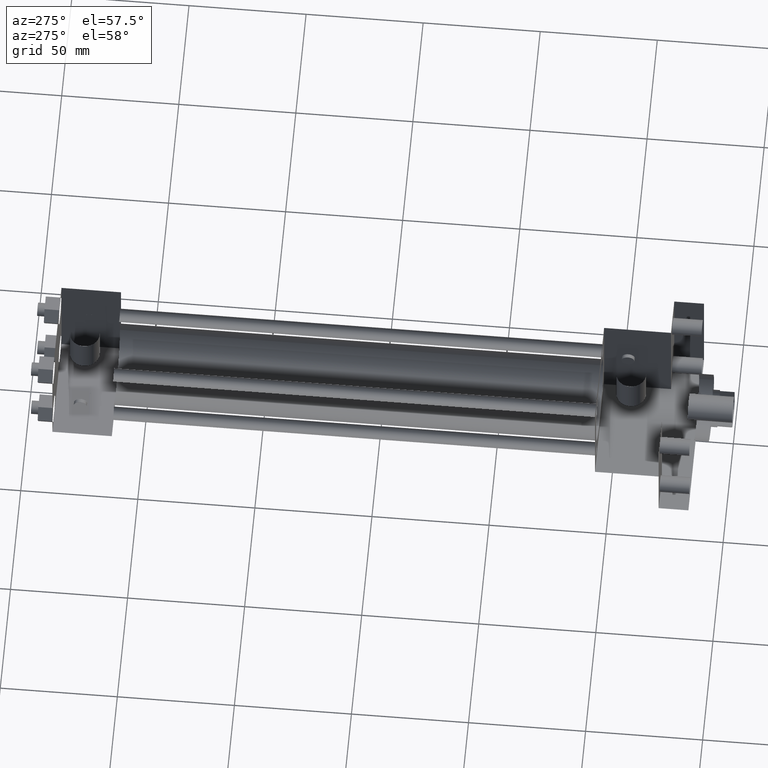
[diagram: clean part render]
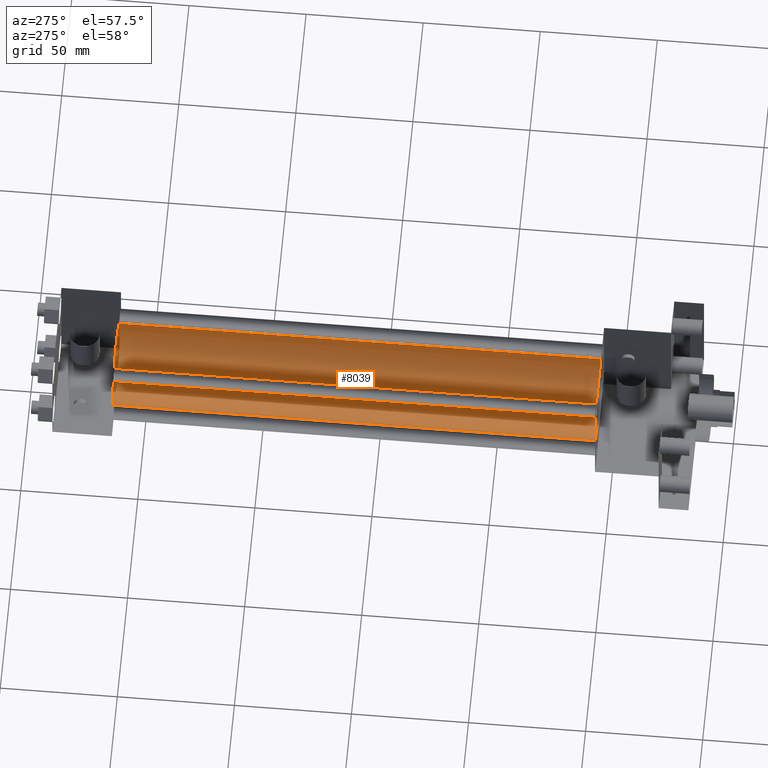
[diagram: same view with one face highlighted and labeled with its STEP entity id]
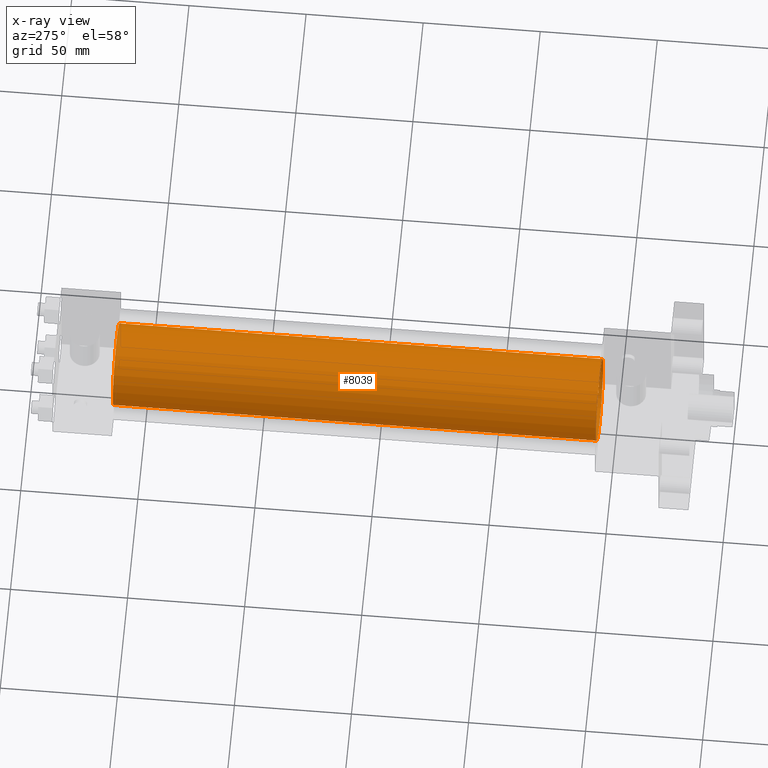
[diagram: x-ray of the same camera — body ghosted, the highlighted face saturated]
A machine part, auxiliary view. The second image highlights one B-rep face of the part: STEP entity #8039.
The next image is the same camera in x-ray: the body ghosted, the highlighted face saturated — about 0% of this face is hidden behind the body in this view.
In plain terms, the highlighted cylindrical surface (bore or boss wall) has radius 17.4625 mm, axis along (0, -1, 0).
Its self-contained STEP definition (entity closure, byte-faithful):
#839=EDGE_CURVE('',#845,#845,#840,.T.);
#840=CIRCLE('',#841,1.746250000E+001);
#841=AXIS2_PLACEMENT_3D('',#842,#843,#844);
#842=CARTESIAN_POINT('',(0.000000000E+000,5.715000000E+001,0.000000000E+000));
#843=DIRECTION('',(0.0E+000,1.0E+000,0.0E+000));
#844=DIRECTION('',(1.0E+000,0.0E+000,0.0E+000));
#845=VERTEX_POINT('',#846);
#846=CARTESIAN_POINT('',(1.746250000E+001,5.715000000E+001,0.000000000E+000));
#1062=FACE_OUTER_BOUND('',#1064,.T.);
#1063=FACE_BOUND('',#1065,.T.);
#1064=EDGE_LOOP('',(#1066));
#1065=EDGE_LOOP('',(#1075));
#1066=ORIENTED_EDGE('',*,*,#1067,.F.);
#1067=EDGE_CURVE('',#1073,#1073,#1068,.T.);
#1068=CIRCLE('',#1069,1.746250000E+001);
#1069=AXIS2_PLACEMENT_3D('',#1070,#1071,#1072);
#1070=CARTESIAN_POINT('',(0.000000000E+000,2.635250000E+002,0.000000000E+000));
#1071=DIRECTION('',(0.0E+000,1.0E+000,0.0E+000));
#1072=DIRECTION('',(1.0E+000,0.0E+000,0.0E+000));
#1073=VERTEX_POINT('',#1074);
#1074=CARTESIAN_POINT('',(1.746250000E+001,2.635250000E+002,0.000000000E+000));
#1075=ORIENTED_EDGE('',*,*,#839,.T.);
#1076=CYLINDRICAL_SURFACE('',#1077,1.746250000E+001);
#1077=AXIS2_PLACEMENT_3D('',#1078,#1079,#1080);
#1078=CARTESIAN_POINT('',(0.000000000E+000,2.635250000E+002,0.000000000E+000));
#1079=DIRECTION('',(0.0E+000,-1.0E+000,0.0E+000));
#1080=DIRECTION('',(0.0E+000,0.0E+000,-1.0E+000));
#8039=ADVANCED_FACE('',(#1062,#1063),#1076,.T.);